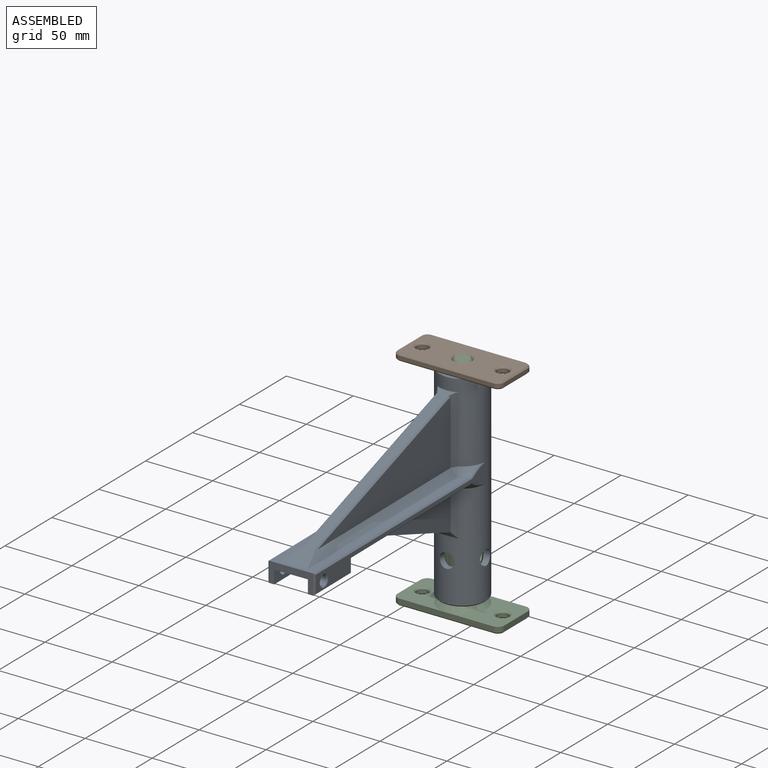
[diagram: assembled view]
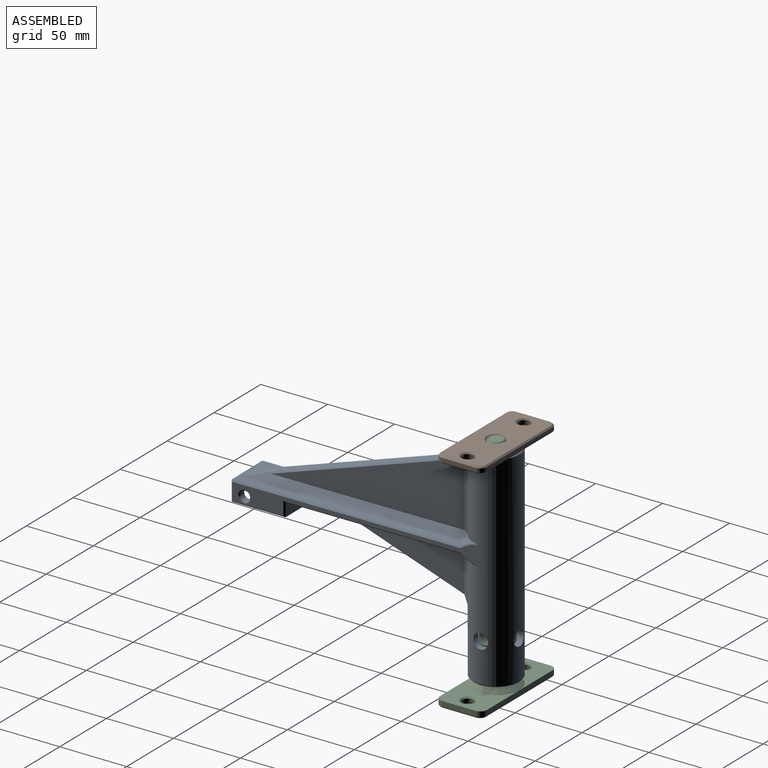
[diagram: assembled view, second angle]
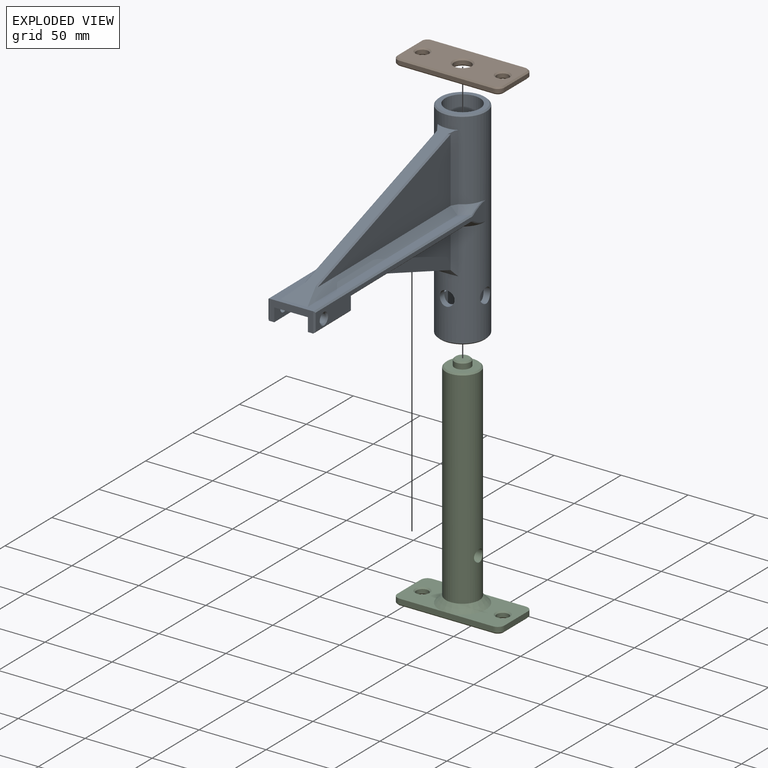
[diagram: exploded view]
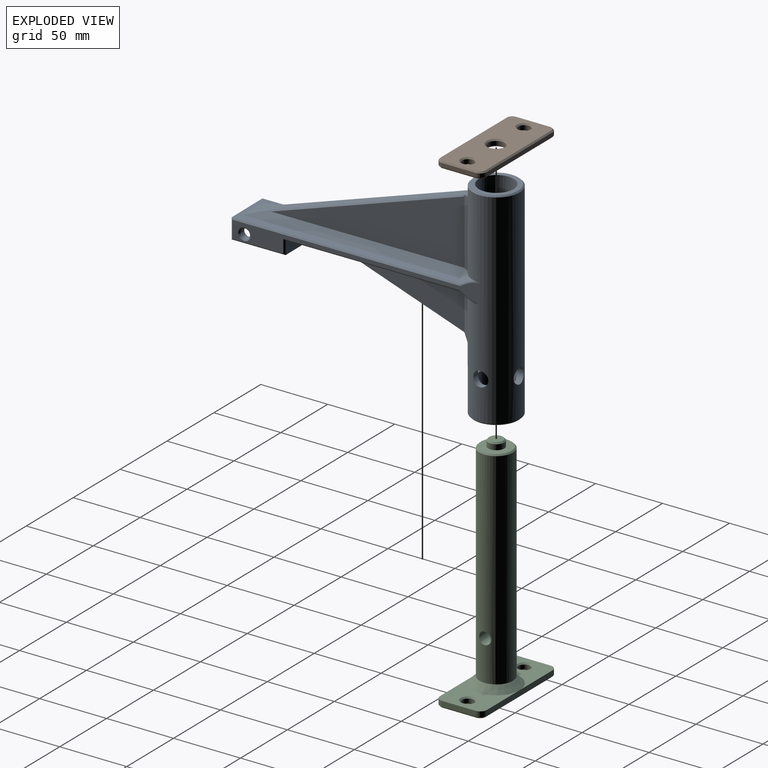
[diagram: exploded view, second angle]
ASSEMBLY  parts=3 mates=3
PART A: 63 faces, bbox 45.6x202.9x155.4 mm
  f0: cylinder r=17.5mm len=153mm, axis (0,0,-1), area 14266.5mm2, adj f2,f8,f9,f10,f11,f12,f14,f17
  f1: plane 129.7x33mm, normal (0,0,-1), area 2236.1mm2, adj f2,f27,f28,f44,f47,f57,f58,f59
  f2: cone r=22.5mm half-angle=45deg, axis (0,0,1), area 90.5mm2, adj f0,f1,f43,f44,f58,f60
  f3: plane 32.5x25mm, normal (0,0,-1), area 745.4mm2, adj f13,f29,f30,f31
  f4: plane 169.7x33mm, normal (0,0,1), area 2235.1mm2, adj f13,f18,f19,f20,f23,f24,f39,f50
  f5: cylinder r=13mm len=155mm, axis (0,0,-1), area 12271.6mm2, adj f6,f7,f8,f9,f10,f11
  f6: plane 33x33mm, normal (0,0,1), area 324.4mm2, adj f5,f36
  f7: plane 33x33mm, normal (0,0,-1), area 324.4mm2, adj f5,f35
  f8: cylinder r=5.5mm len=11mm, axis (1,0,0), area 155.5mm2, adj f0,f5
  f9: cylinder r=5.5mm len=11mm, axis (1,0,0), area 155.5mm2, adj f0,f5
  f10: cylinder r=5.5mm len=11mm, axis (0,-1,0), area 155.5mm2, adj f0,f5
  f11: cylinder r=5.5mm len=11mm, axis (0,-1,0), area 155.5mm2, adj f0,f5
  f12: plane 184.35x18.94mm, normal (-1,0,0), area 977.1mm2, adj f0,f45,f46,f47,f48,f49,f50,f51
  f13: plane 33x15mm, normal (0,-1,0), area 245mm2, adj f3,f4,f29,f31,f32,f40,f52
  f14: plane 184.35x18.94mm, normal (1,0,0), area 974.4mm2, adj f0,f37,f38,f39,f40,f41,f42,f43
  f15: plane 143.56x48.15mm, normal (-1,0,0), area 3455.9mm2, adj f23,f26,f53
  f16: plane 143.56x48.15mm, normal (1,0,0), area 3455.9mm2, adj f20,f22,f54
  f17: plane 15.56x2.09mm, normal (0,0,1), area 10.7mm2, adj f0,f18,f22,f26
  f18: plane 164x55mm, normal (0,-0.32,0.95), area 1507.5mm2, adj f4,f17,f20,f22,f23,f26,f53,f54
  f19: cone r=17.5mm half-angle=45deg, axis (0,0,-1), area 82.6mm2, adj f0,f4,f21,f38,f39
  f20: plane 161.62x6mm, normal (0.71,0,0.71), area 1092.3mm2, adj f4,f16,f18,f21,f54
  f21: plane 5x5mm, normal (0.65,-0.4,0.65), area 17.3mm2, adj f19,f20,f22
  f22: plane 50x6.09mm, normal (0.85,-0.53,0), area 263.4mm2, adj f0,f16,f17,f18,f21,f54
  f23: plane 161.62x6mm, normal (-0.71,0,0.71), area 1092.3mm2, adj f4,f15,f18,f25,f53
  f24: cone r=17.5mm half-angle=45deg, axis (0,0,-1), area 82.6mm2, adj f0,f4,f25,f48,f50
  f25: plane 5x5mm, normal (-0.65,-0.4,0.65), area 17.3mm2, adj f23,f24,f26
  f26: plane 50x6.09mm, normal (-0.85,-0.53,0), area 263.4mm2, adj f0,f15,f17,f18,f25,f53
  f27: cone r=22.5mm half-angle=45deg, axis (0,0,1), area 90.5mm2, adj f0,f1,f46,f47,f59,f61
  f28: plane 33x10mm, normal (0,1,0), area 330mm2, adj f1,f32,f42,f49
  f29: plane 20x10mm, normal (-1,0,0), area 161.5mm2, adj f3,f13,f30,f32,f34
  f30: cylinder r=12.5mm len=25mm, axis (0,0,1), area 392.7mm2, adj f3,f29,f31,f32
  f31: plane 20x10mm, normal (1,0,0), area 161.5mm2, adj f3,f13,f30,f32,f33
  f32: plane 40x33mm, normal (0,0,-1), area 574.6mm2, adj f13,f28,f29,f30,f31,f41,f51
  f33: cylinder r=3.5mm len=7mm, axis (-1,0,0), area 88mm2, adj f31,f45
  f34: cylinder r=3.5mm len=7mm, axis (-1,0,0), area 88mm2, adj f29,f37
  f35: cone r=17.5mm half-angle=45deg, axis (0,0,1), area 151.1mm2, adj f0,f7
  f36: cone r=16.5mm half-angle=45deg, axis (0,0,-1), area 151.1mm2, adj f0,f6
  f37: cone r=4.5mm half-angle=45deg, axis (1,0,0), area 35.5mm2, adj f14,f34
  f38: bspline ~15.5x6.52mm, area 12.7mm2, adj f0,f14,f19,f39
  f39: plane 170.32x1mm, normal (0.71,0,0.71), area 239.4mm2, adj f4,f14,f19,f38,f40
  f40: plane 15x1mm, normal (0.71,-0.71,0), area 19.8mm2, adj f13,f14,f39,f41
  f41: plane 40x1mm, normal (0.71,0,-0.71), area 55.2mm2, adj f14,f32,f40,f42
  f42: plane 11x1mm, normal (0.71,0.71,0), area 14.1mm2, adj f14,f28,f41,f44
  f43: bspline ~15.5x6.52mm, area 12.8mm2, adj f0,f2,f14,f44
  f44: plane 131.32x1mm, normal (0.71,0,-0.71), area 184.1mm2, adj f1,f2,f14,f42,f43
  f45: cone r=3.5mm half-angle=45deg, axis (-1,0,0), area 35.5mm2, adj f12,f33
  f46: bspline ~15.5x6.52mm, area 12.7mm2, adj f0,f12,f27,f47
  f47: plane 131.32x1mm, normal (-0.71,0,-0.71), area 184.2mm2, adj f1,f12,f27,f46,f49
  f48: bspline ~15.5x6.52mm, area 12.8mm2, adj f0,f12,f24,f50
  f49: plane 11x1mm, normal (-0.71,0.71,0), area 14.1mm2, adj f12,f28,f47,f51
  f50: plane 170.32x1mm, normal (-0.71,0,0.71), area 239.3mm2, adj f4,f12,f24,f48,f52
  f51: plane 40x1mm, normal (-0.71,0,-0.71), area 55.2mm2, adj f12,f32,f49,f52
  f52: plane 15x1mm, normal (-0.71,-0.71,0), area 19.8mm2, adj f12,f13,f50,f51
  f53: plane 143.72x48.66mm, normal (-0.71,-0.22,0.67), area 213.1mm2, adj f15,f18,f23,f26
  f54: plane 143.72x48.66mm, normal (0.71,-0.22,0.67), area 213.1mm2, adj f16,f18,f20,f22
  f55: plane 81.28x28.58mm, normal (1,0,0), area 1156.2mm2, adj f57,f58,f60,f62
  f56: plane 81.28x28.58mm, normal (-1,0,0), area 1156.2mm2, adj f57,f59,f61,f62
  f57: plane 95.45x33.42mm, normal (0,-0.33,-0.94), area 1082.9mm2, adj f1,f55,f56,f58,f59,f62
  f58: plane 98.07x5.16mm, normal (0.71,0,-0.71), area 633.4mm2, adj f1,f2,f55,f57,f60
  f59: plane 98.07x5.16mm, normal (-0.71,0,-0.71), area 633.4mm2, adj f1,f27,f56,f57,f61
  f60: plane 35.32x4.6mm, normal (0.85,-0.53,0), area 168.4mm2, adj f0,f2,f55,f58,f62
  f61: plane 35.32x4.6mm, normal (-0.85,-0.53,0), area 168.4mm2, adj f0,f27,f56,f59,f62
  f62: bspline ~20x5.54mm, area 74.5mm2, adj f0,f55,f56,f57,f60,f61
PART B: 35 faces, bbox 80x35x5 mm
  f0: plane 78x33mm, normal (0,0,1), area 2205.1mm2, adj f24,f25,f26,f27,f28,f29,f30,f31
  f1: plane 78x33mm, normal (0,0,-1), area 2205.1mm2, adj f13,f14,f15,f16,f17,f18,f19,f20
  f2: plane 25x3mm, normal (1,0,0), area 75mm2, adj f3,f9,f18,f29
  f3: cylinder r=5mm len=5mm, axis (0,0,-1), area 23.6mm2, adj f2,f4,f16,f27
  f4: plane 70x3mm, normal (0,1,0), area 210mm2, adj f3,f5,f17,f28
  f5: cylinder r=5mm len=5mm, axis (0,0,-1), area 23.6mm2, adj f4,f6,f19,f30
  f6: plane 25x3mm, normal (-1,0,0), area 75mm2, adj f5,f7,f21,f32
  f7: cylinder r=5mm len=5mm, axis (0,0,-1), area 23.6mm2, adj f6,f8,f23,f34
  f8: plane 70x3mm, normal (0,-1,0), area 210mm2, adj f7,f9,f22,f33
  f9: cylinder r=5mm len=5mm, axis (0,0,-1), area 23.6mm2, adj f2,f8,f20,f31
  f10: cylinder r=6.25mm len=12.5mm, axis (0,0,1), area 117.8mm2, adj f13,f24
  f11: cylinder r=4.5mm len=9mm, axis (0,0,1), area 84.8mm2, adj f14,f25
  f12: cylinder r=4.5mm len=9mm, axis (0,0,1), area 84.8mm2, adj f15,f26
  f13: cone r=7.25mm half-angle=45deg, axis (0,0,-1), area 60mm2, adj f1,f10
  f14: cone r=4.5mm half-angle=45deg, axis (0,0,-1), area 44.4mm2, adj f1,f11
  f15: cone r=5.5mm half-angle=45deg, axis (0,0,-1), area 44.4mm2, adj f1,f12
  f16: cone r=5mm half-angle=45deg, axis (0,0,1), area 10mm2, adj f1,f3,f17,f18
  f17: plane 70x1mm, normal (0,0.71,-0.71), area 99mm2, adj f1,f4,f16,f19
  f18: plane 25x1mm, normal (0.71,0,-0.71), area 35.4mm2, adj f1,f2,f16,f20
  f19: cone r=5mm half-angle=45deg, axis (0,0,1), area 10mm2, adj f1,f5,f17,f21
  f20: cone r=5mm half-angle=45deg, axis (0,0,1), area 10mm2, adj f1,f9,f18,f22
  f21: plane 25x1mm, normal (-0.71,0,-0.71), area 35.4mm2, adj f1,f6,f19,f23
  f22: plane 70x1mm, normal (0,-0.71,-0.71), area 99mm2, adj f1,f8,f20,f23
  f23: cone r=5mm half-angle=45deg, axis (0,0,1), area 10mm2, adj f1,f7,f21,f22
  f24: cone r=6.25mm half-angle=45deg, axis (0,0,1), area 60mm2, adj f0,f10
  f25: cone r=5.5mm half-angle=45deg, axis (0,0,1), area 44.4mm2, adj f0,f11
  f26: cone r=4.5mm half-angle=45deg, axis (0,0,1), area 44.4mm2, adj f0,f12
  f27: cone r=4mm half-angle=45deg, axis (0,0,-1), area 10mm2, adj f0,f3,f28,f29
  f28: plane 70x1mm, normal (0,0.71,0.71), area 99mm2, adj f0,f4,f27,f30
  f29: plane 25x1mm, normal (0.71,0,0.71), area 35.4mm2, adj f0,f2,f27,f31
  f30: cone r=4mm half-angle=45deg, axis (0,0,-1), area 10mm2, adj f0,f5,f28,f32
  f31: cone r=4mm half-angle=45deg, axis (0,0,-1), area 10mm2, adj f0,f9,f29,f33
  f32: plane 25x1mm, normal (-0.71,0,0.71), area 35.4mm2, adj f0,f6,f30,f34
  f33: plane 70x1mm, normal (0,-0.71,0.71), area 99mm2, adj f0,f8,f31,f34
  f34: cone r=4mm half-angle=45deg, axis (0,0,-1), area 10mm2, adj f0,f7,f32,f33
PART C: 33 faces, bbox 80x35x170 mm
  f0: plane 40x35mm, normal (0,0,1), area 813.2mm2, adj f5,f6,f7,f8,f9,f15,f31
  f1: plane 40x35mm, normal (0,0,1), area 813.2mm2, adj f3,f4,f5,f9,f10,f15,f30
  f2: plane 78x33mm, normal (0,0,-1), area 2370.2mm2, adj f18,f19,f20,f21,f22,f23,f24,f25
  f3: plane 25x4mm, normal (1,0,0), area 100mm2, adj f1,f4,f10,f22
  f4: cylinder r=5mm len=5mm, axis (0,0,-1), area 31.4mm2, adj f1,f3,f5,f24
  f5: plane 70x4mm, normal (0,1,0), area 280mm2, adj f0,f1,f4,f6,f25
  f6: cylinder r=5mm len=5mm, axis (0,0,-1), area 31.4mm2, adj f0,f5,f7,f23
  f7: plane 25x4mm, normal (-1,0,0), area 100mm2, adj f0,f6,f8,f21
  f8: cylinder r=5mm len=5mm, axis (0,0,-1), area 31.4mm2, adj f0,f7,f9,f19
  f9: plane 70x4mm, normal (0,-1,0), area 280mm2, adj f0,f1,f8,f10,f18
  f10: cylinder r=5mm len=5mm, axis (0,0,-1), area 31.4mm2, adj f1,f3,f9,f20
  f11: cylinder r=4.5mm len=9mm, axis (0,0,1), area 84.8mm2, adj f29,f30
  f12: cylinder r=4.5mm len=9mm, axis (0,0,1), area 84.8mm2, adj f28,f31
  f13: cylinder r=12.5mm len=154mm, axis (0,0,-1), area 11965.9mm2, adj f15,f27,f32
  f14: plane 23x23mm, normal (0,0,1), area 302.4mm2, adj f16,f27
  f15: cone r=12.5mm half-angle=45deg, axis (0,0,-1), area 666.4mm2, adj f0,f1,f13
  f16: cylinder r=6mm len=12mm, axis (0,0,-1), area 150.8mm2, adj f14,f26
  f17: plane 10x10mm, normal (0,0,1), area 78.5mm2, adj f26
  f18: plane 70x1mm, normal (0,-0.71,-0.71), area 99mm2, adj f2,f9,f19,f20
  f19: cone r=5mm half-angle=45deg, axis (0,0,1), area 10mm2, adj f2,f8,f18,f21
  f20: cone r=5mm half-angle=45deg, axis (0,0,1), area 10mm2, adj f2,f10,f18,f22
  f21: plane 25x1mm, normal (-0.71,0,-0.71), area 35.4mm2, adj f2,f7,f19,f23
  f22: plane 25x1mm, normal (0.71,0,-0.71), area 35.4mm2, adj f2,f3,f20,f24
  f23: cone r=5mm half-angle=45deg, axis (0,0,1), area 10mm2, adj f2,f6,f21,f25
  f24: cone r=5mm half-angle=45deg, axis (0,0,1), area 10mm2, adj f2,f4,f22,f25
  f25: plane 70x1mm, normal (0,0.71,-0.71), area 99mm2, adj f2,f5,f23,f24
  f26: cone r=5mm half-angle=45deg, axis (0,0,-1), area 48.9mm2, adj f16,f17
  f27: cone r=11.5mm half-angle=45deg, axis (0,0,-1), area 106.6mm2, adj f13,f14
  f28: cone r=5.5mm half-angle=45deg, axis (0,0,-1), area 44.4mm2, adj f2,f12
  f29: cone r=4.5mm half-angle=45deg, axis (0,0,-1), area 44.4mm2, adj f2,f11
  f30: cone r=5.5mm half-angle=45deg, axis (0,0,1), area 44.4mm2, adj f1,f11
  f31: cone r=4.5mm half-angle=45deg, axis (0,0,1), area 44.4mm2, adj f0,f12
  f32: cylinder r=4.5mm len=25mm, axis (1,0,0), area 683.4mm2, adj f13
PLACE A rot(axis=(0,0,1),0.5deg) t=(-12.36,77.28,-57.76)mm
PLACE B t=(-12.36,77.28,97.24)mm
PLACE C t=(-12.36,77.28,-67.76)mm fixed
MATE revolute A.f0 <-> C.f16  axis (0,0,1) through (-12.36,77.28,97.24)mm
MATE planar B.f10 <-> C.f13  axis (0,0,-1) through (-12.36,77.28,97.24)mm
MATE planar C.f13 <-> A.f0  axis (0,0,1) through (-12.36,77.28,97.24)mm
